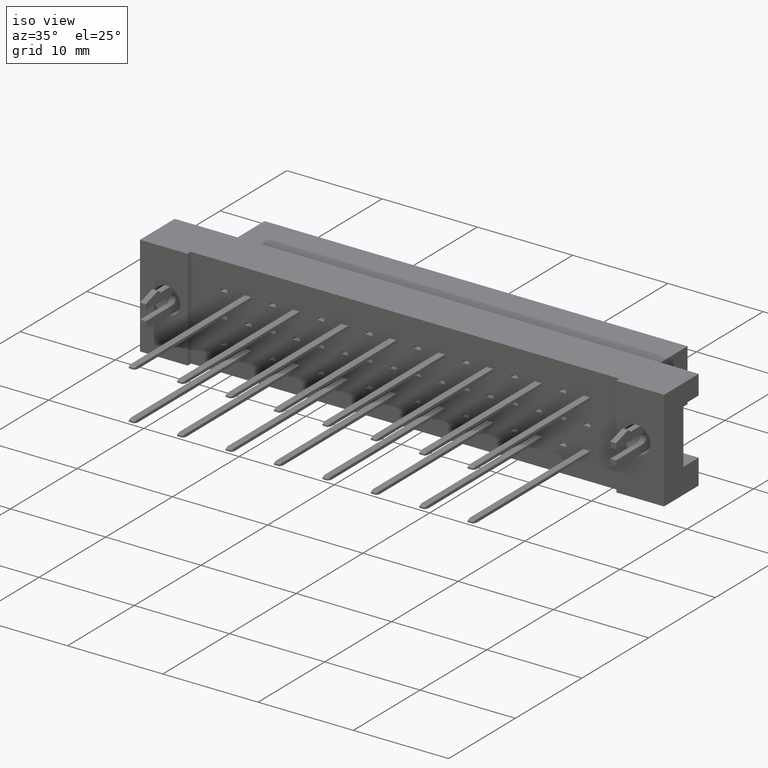
[diagram: clean part render]
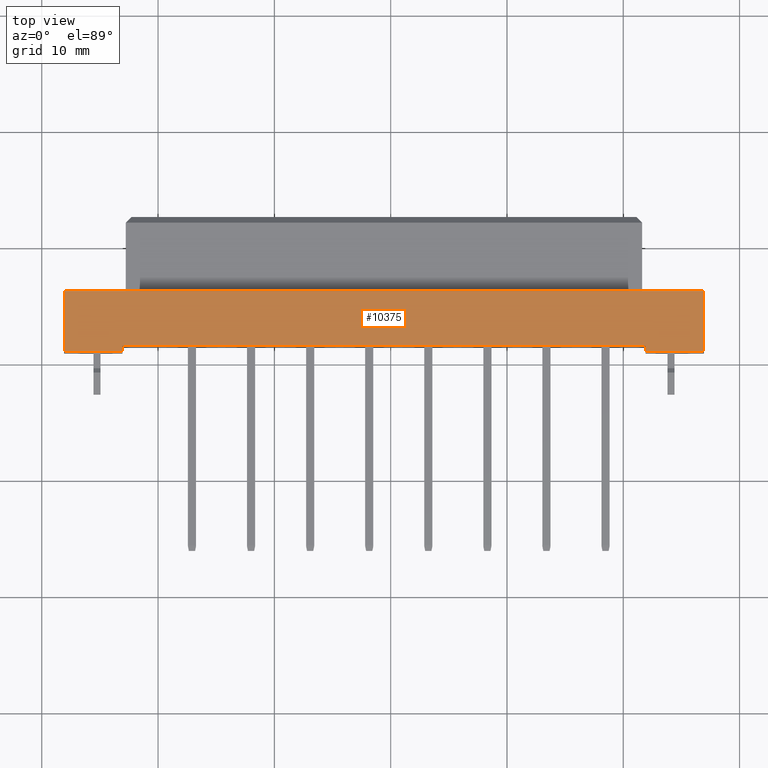
[diagram: tour spotlight — one face highlighted and labeled with its STEP entity id]
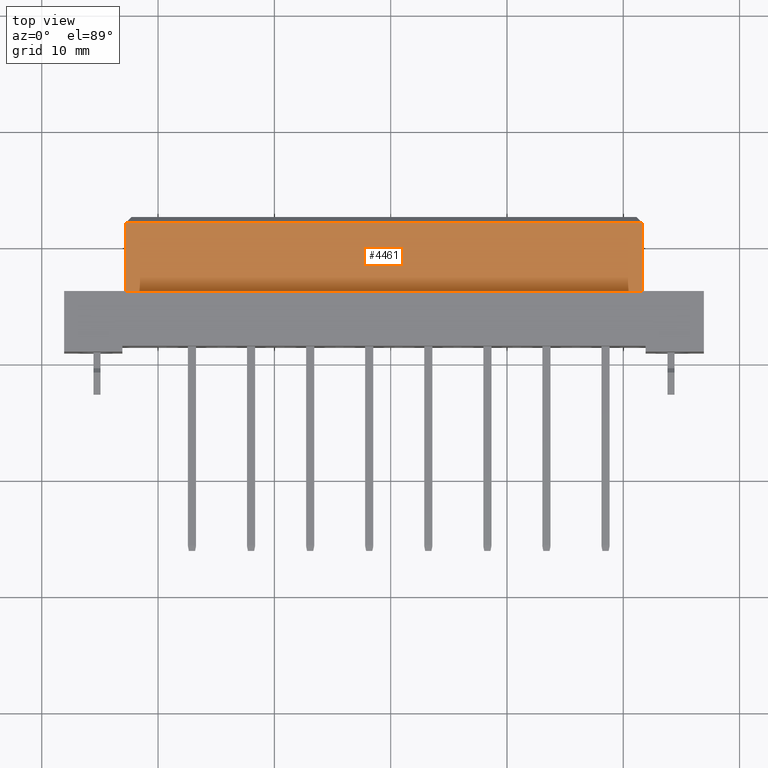
[diagram: tour spotlight — one face highlighted and labeled with its STEP entity id]
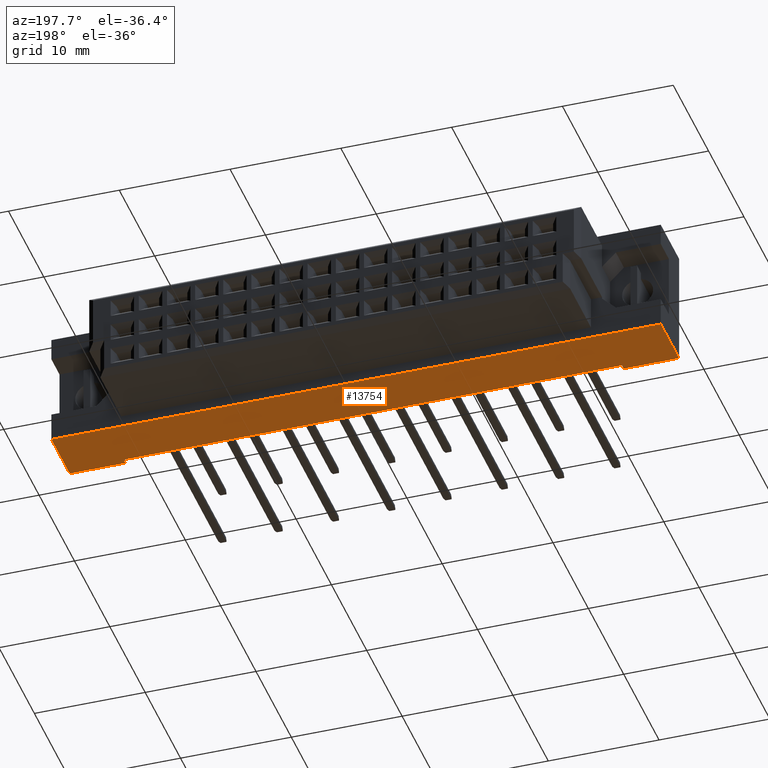
[diagram: tour spotlight — one face highlighted and labeled with its STEP entity id]
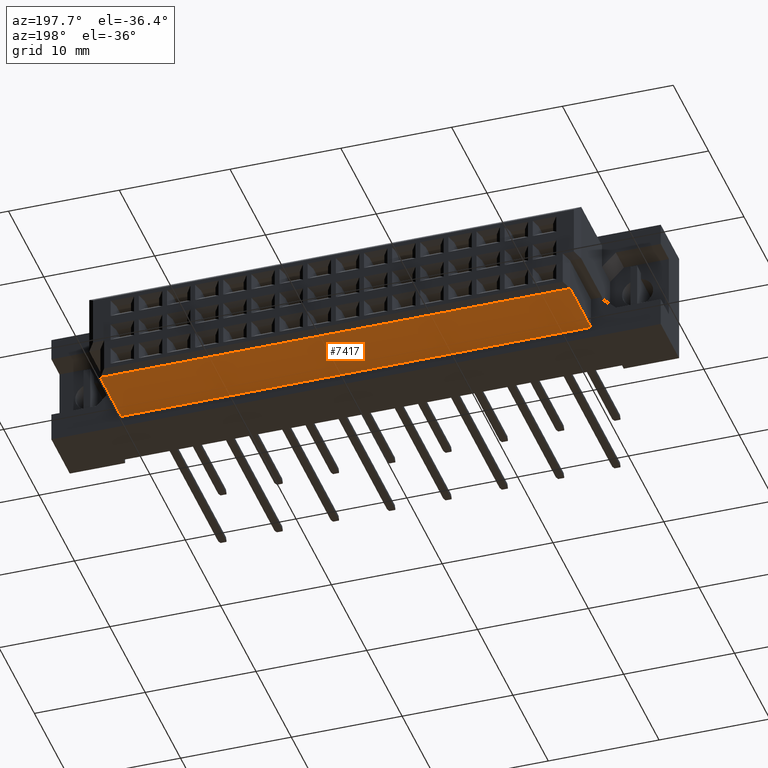
[diagram: tour spotlight — one face highlighted and labeled with its STEP entity id]
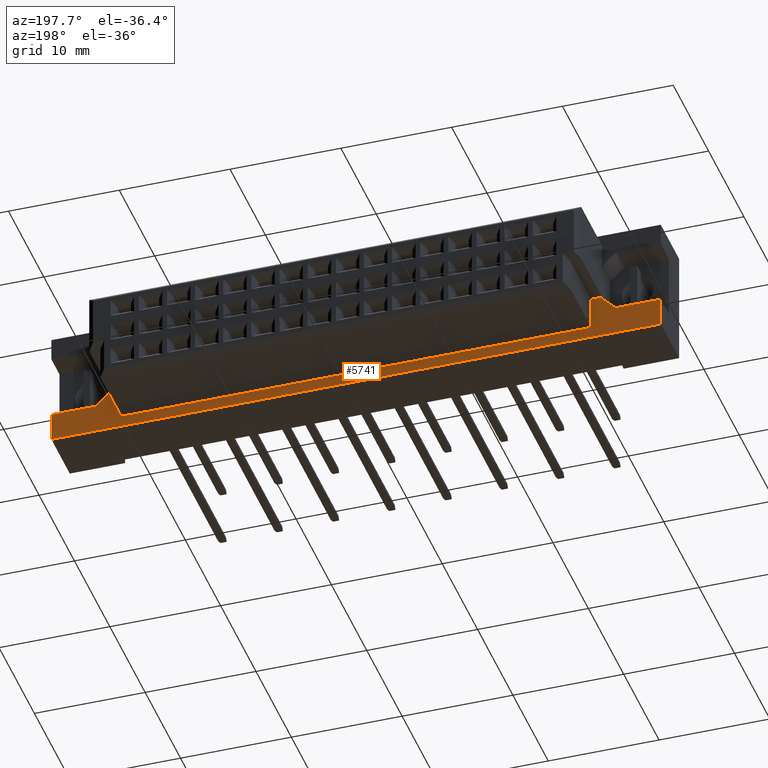
[diagram: tour spotlight — one face highlighted and labeled with its STEP entity id]
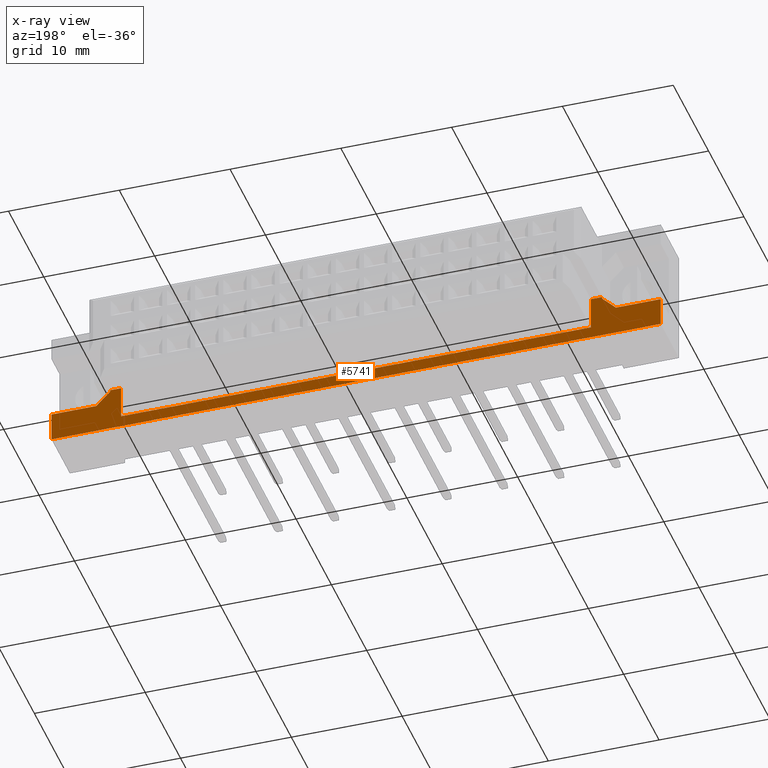
[diagram: x-ray of the same camera — body ghosted, this tour face saturated]
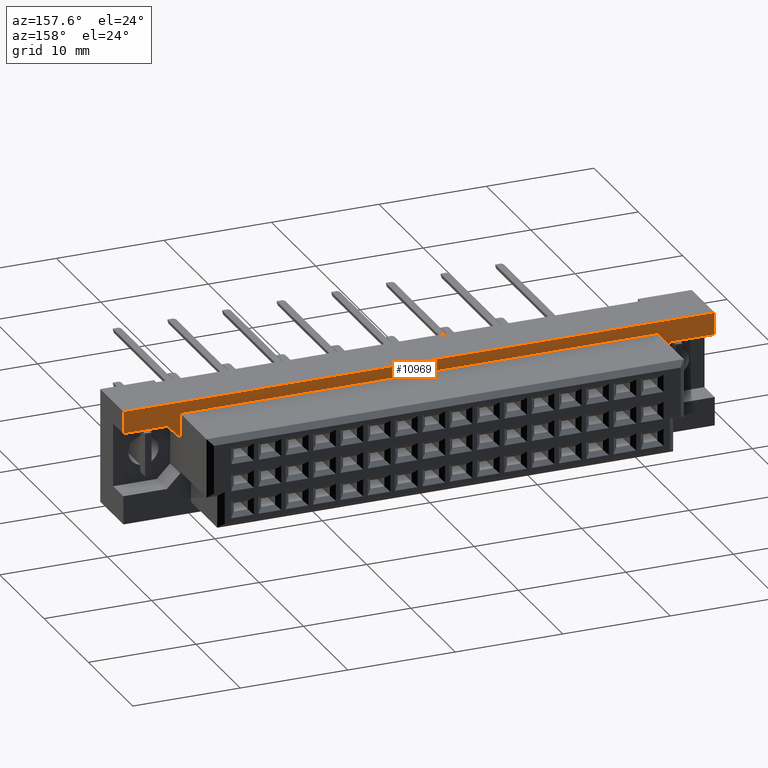
[diagram: tour spotlight — one face highlighted and labeled with its STEP entity id]
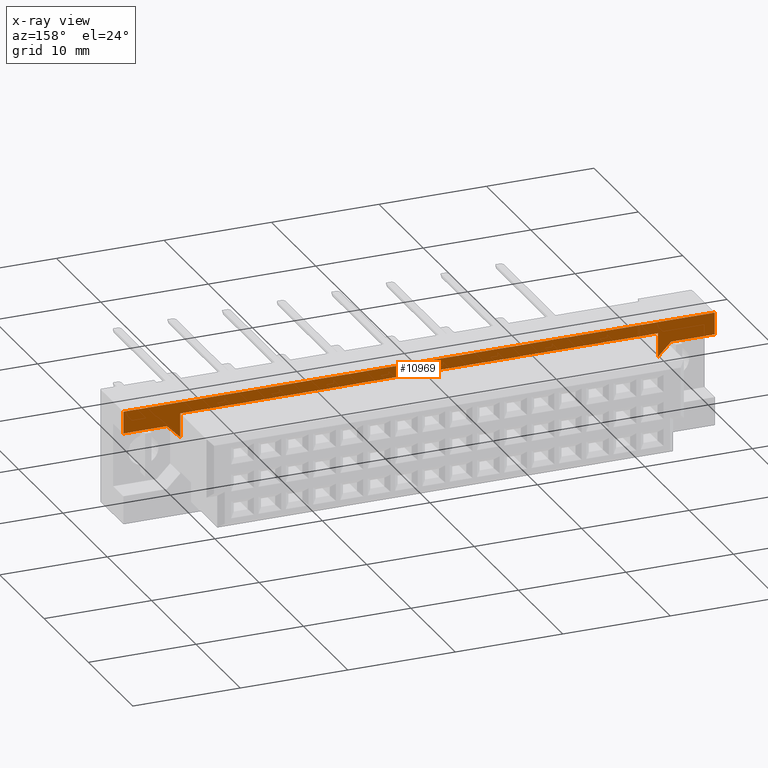
[diagram: x-ray of the same camera — body ghosted, this tour face saturated]
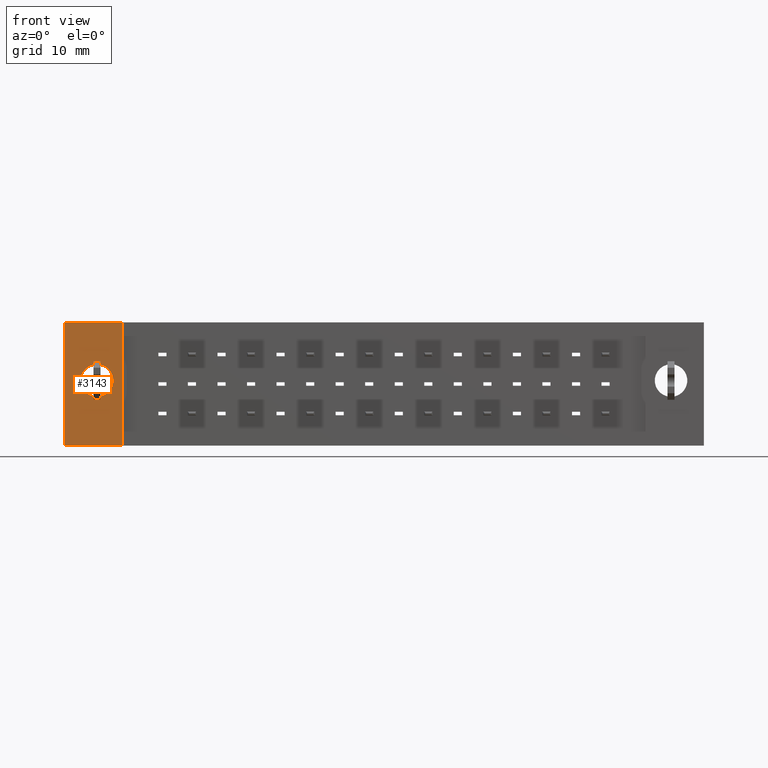
[diagram: tour spotlight — one face highlighted and labeled with its STEP entity id]
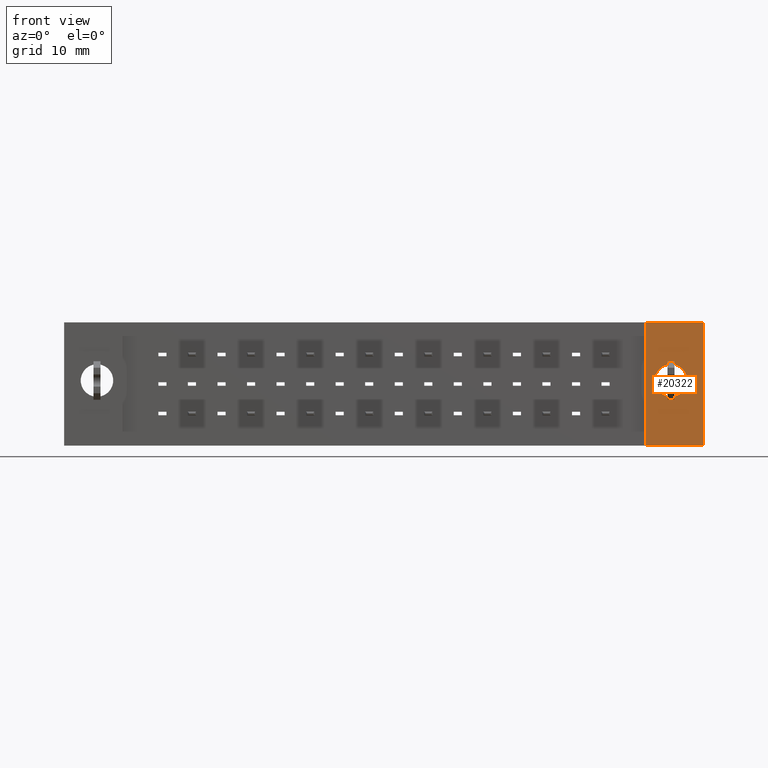
[diagram: tour spotlight — one face highlighted and labeled with its STEP entity id]
A machine part: a face-by-face anatomy tour. The part has 862 B-rep faces; the first image is the clean iso view, then the 8 largest visible faces are spotlighted one at a time (largest first), each with its STEP entity span.

Face 1 — top view, entity #10375. In plain terms, the highlighted planar face has unit normal (0, 0, 1).
Definition (entity closure, byte-faithful):
#76 = ORIENTED_EDGE ( 'NONE', *, *, #5737, .T. ) ;
#197 = DIRECTION ( 'NONE',  ( 1.000000000000000000, 0.0000000000000000000, 0.0000000000000000000 ) ) ;
#309 = LINE ( 'NONE', #6570, #13867 ) ;
#550 = AXIS2_PLACEMENT_3D ( 'NONE', #20572, #17804, #20679 ) ;
#1264 = PLANE ( 'NONE',  #550 ) ;
#1383 = LINE ( 'NONE', #4677, #20465 ) ;
#2002 = LINE ( 'NONE', #4971, #13163 ) ;
#2168 = VERTEX_POINT ( 'NONE', #10176 ) ;
#2181 = ORIENTED_EDGE ( 'NONE', *, *, #12169, .T. ) ;
#2316 = VERTEX_POINT ( 'NONE', #13773 ) ;
#2550 = CARTESIAN_POINT ( 'NONE',  ( -27.50000000000000355, -6.400000000000001243, 5.299999999999999822 ) ) ;
#2758 = EDGE_CURVE ( 'NONE', #3598, #20580, #1383, .T. ) ;
#3102 = CARTESIAN_POINT ( 'NONE',  ( -27.50000000000000355, -11.59999999999999964, 5.299999999999999822 ) ) ;
#3303 = DIRECTION ( 'NONE',  ( 1.000000000000000000, 0.0000000000000000000, 0.0000000000000000000 ) ) ;
#3465 = EDGE_CURVE ( 'NONE', #2168, #2316, #11430, .T. ) ;
#3598 = VERTEX_POINT ( 'NONE', #20959 ) ;
#4046 = VERTEX_POINT ( 'NONE', #19757 ) ;
#4211 = LINE ( 'NONE', #12177, #19230 ) ;
#4601 = VERTEX_POINT ( 'NONE', #14137 ) ;
#4677 = CARTESIAN_POINT ( 'NONE',  ( -22.50000000000001421, -11.09999999999999787, 5.300000000000009592 ) ) ;
#4971 = CARTESIAN_POINT ( 'NONE',  ( -27.50000000000000355, -11.59999999999999964, 5.299999999999999822 ) ) ;
#5359 = VECTOR ( 'NONE', #17776, 1000.000000000000000 ) ;
#5737 = EDGE_CURVE ( 'NONE', #2316, #4601, #309, .T. ) ;
#5755 = EDGE_CURVE ( 'NONE', #4046, #9879, #2002, .T. ) ;
#6287 = LINE ( 'NONE', #3102, #10558 ) ;
#6570 = CARTESIAN_POINT ( 'NONE',  ( -27.50000000000000355, -11.59999999999999964, 5.299999999999999822 ) ) ;
#6988 = DIRECTION ( 'NONE',  ( 0.0000000000000000000, 1.000000000000000000, 0.0000000000000000000 ) ) ;
#7110 = EDGE_LOOP ( 'NONE', ( #14470, #76, #2181, #17281, #16140, #15851, #10396, #10327 ) ) ;
#8736 = CARTESIAN_POINT ( 'NONE',  ( 27.49999999999999645, -6.400000000000001243, 5.299999999999999822 ) ) ;
#9163 = VECTOR ( 'NONE', #12697, 1000.000000000000000 ) ;
#9879 = VERTEX_POINT ( 'NONE', #13975 ) ;
#10176 = CARTESIAN_POINT ( 'NONE',  ( 22.50000000000001421, -11.09999999999999787, 5.300000000000009592 ) ) ;
#10327 = ORIENTED_EDGE ( 'NONE', *, *, #15572, .F. ) ;
#10375 = ADVANCED_FACE ( 'NONE', ( #12935 ), #1264, .T. ) ;
#10396 = ORIENTED_EDGE ( 'NONE', *, *, #2758, .F. ) ;
#10558 = VECTOR ( 'NONE', #3303, 1000.000000000000000 ) ;
#11175 = DIRECTION ( 'NONE',  ( -0.0000000000000000000, -1.000000000000000000, -6.123031769111886291E-17 ) ) ;
#11224 = LINE ( 'NONE', #14512, #5359 ) ;
#11430 = LINE ( 'NONE', #17778, #9163 ) ;
#12169 = EDGE_CURVE ( 'NONE', #4601, #13200, #4211, .T. ) ;
#12177 = CARTESIAN_POINT ( 'NONE',  ( 27.49999999999999645, -11.59999999999999964, 5.299999999999999822 ) ) ;
#12656 = CARTESIAN_POINT ( 'NONE',  ( -22.50000000000001421, -11.59999999999999964, 5.299999999999999822 ) ) ;
#12697 = DIRECTION ( 'NONE',  ( -0.0000000000000000000, -1.000000000000000000, -6.123031769111886291E-17 ) ) ;
#12935 = FACE_OUTER_BOUND ( 'NONE', #7110, .T. ) ;
#12951 = VECTOR ( 'NONE', #18982, 1000.000000000000000 ) ;
#13163 = VECTOR ( 'NONE', #6988, 1000.000000000000000 ) ;
#13200 = VERTEX_POINT ( 'NONE', #8736 ) ;
#13773 = CARTESIAN_POINT ( 'NONE',  ( 22.50000000000001421, -11.59999999999999964, 5.300000000000009592 ) ) ;
#13867 = VECTOR ( 'NONE', #197, 1000.000000000000000 ) ;
#13975 = CARTESIAN_POINT ( 'NONE',  ( -27.50000000000000355, -6.400000000000001243, 5.299999999999999822 ) ) ;
#14137 = CARTESIAN_POINT ( 'NONE',  ( 27.49999999999999645, -11.59999999999999964, 5.299999999999999822 ) ) ;
#14470 = ORIENTED_EDGE ( 'NONE', *, *, #3465, .T. ) ;
#14512 = CARTESIAN_POINT ( 'NONE',  ( -22.50000000000001421, -11.09999999999999787, 5.300000000000009592 ) ) ;
#15572 = EDGE_CURVE ( 'NONE', #2168, #3598, #11224, .T. ) ;
#15851 = ORIENTED_EDGE ( 'NONE', *, *, #20643, .T. ) ;
#16140 = ORIENTED_EDGE ( 'NONE', *, *, #5755, .F. ) ;
#17199 = LINE ( 'NONE', #2550, #12951 ) ;
#17281 = ORIENTED_EDGE ( 'NONE', *, *, #18234, .F. ) ;
#17776 = DIRECTION ( 'NONE',  ( -1.000000000000000000, -0.0000000000000000000, -0.0000000000000000000 ) ) ;
#17778 = CARTESIAN_POINT ( 'NONE',  ( 22.50000000000001421, -11.09999999999999787, 5.300000000000009592 ) ) ;
#17804 = DIRECTION ( 'NONE',  ( 0.0000000000000000000, 0.0000000000000000000, 1.000000000000000000 ) ) ;
#18234 = EDGE_CURVE ( 'NONE', #9879, #13200, #17199, .T. ) ;
#18621 = DIRECTION ( 'NONE',  ( 0.0000000000000000000, 1.000000000000000000, 0.0000000000000000000 ) ) ;
#18982 = DIRECTION ( 'NONE',  ( 1.000000000000000000, 0.0000000000000000000, 0.0000000000000000000 ) ) ;
#19230 = VECTOR ( 'NONE', #18621, 1000.000000000000000 ) ;
#19757 = CARTESIAN_POINT ( 'NONE',  ( -27.50000000000000355, -11.59999999999999964, 5.299999999999999822 ) ) ;
#20465 = VECTOR ( 'NONE', #11175, 1000.000000000000000 ) ;
#20572 = CARTESIAN_POINT ( 'NONE',  ( -27.50000000000000355, -11.59999999999999964, 5.299999999999999822 ) ) ;
#20580 = VERTEX_POINT ( 'NONE', #12656 ) ;
#20643 = EDGE_CURVE ( 'NONE', #4046, #20580, #6287, .T. ) ;
#20679 = DIRECTION ( 'NONE',  ( 1.000000000000000000, 0.0000000000000000000, -0.0000000000000000000 ) ) ;
#20959 = CARTESIAN_POINT ( 'NONE',  ( -22.50000000000001421, -11.09999999999999787, 5.300000000000009592 ) ) ;

Face 2 — top view, entity #4461. In plain terms, the highlighted planar face has unit normal (0, 0, 1).
Definition (entity closure, byte-faithful):
#119 = FACE_OUTER_BOUND ( 'NONE', #3746, .T. ) ;
#847 = DIRECTION ( 'NONE',  ( -0.0000000000000000000, 1.000000000000000000, -0.0000000000000000000 ) ) ;
#1556 = VERTEX_POINT ( 'NONE', #10643 ) ;
#1817 = DIRECTION ( 'NONE',  ( 1.000000000000000000, 0.0000000000000000000, -0.0000000000000000000 ) ) ;
#2199 = DIRECTION ( 'NONE',  ( -1.000000000000000000, 0.0000000000000000000, 0.0000000000000000000 ) ) ;
#2620 = CARTESIAN_POINT ( 'NONE',  ( -22.19999999999999218, -0.5000000000000143219, 4.250000000000000888 ) ) ;
#3746 = EDGE_LOOP ( 'NONE', ( #14559, #7997, #5891, #11866 ) ) ;
#4461 = ADVANCED_FACE ( 'NONE', ( #119 ), #13059, .T. ) ;
#4518 = DIRECTION ( 'NONE',  ( -0.0000000000000000000, 1.000000000000000000, -0.0000000000000000000 ) ) ;
#5891 = ORIENTED_EDGE ( 'NONE', *, *, #20258, .F. ) ;
#6857 = DIRECTION ( 'NONE',  ( 1.000000000000000000, -0.0000000000000000000, -0.0000000000000000000 ) ) ;
#7137 = VERTEX_POINT ( 'NONE', #19843 ) ;
#7337 = CARTESIAN_POINT ( 'NONE',  ( 22.19999999999999218, -6.400000000000001243, 4.250000000000000888 ) ) ;
#7997 = ORIENTED_EDGE ( 'NONE', *, *, #16517, .T. ) ;
#8454 = LINE ( 'NONE', #11328, #16632 ) ;
#9496 = EDGE_CURVE ( 'NONE', #14690, #7137, #8454, .T. ) ;
#10090 = EDGE_CURVE ( 'NONE', #7137, #1556, #15496, .T. ) ;
#10227 = AXIS2_PLACEMENT_3D ( 'NONE', #11487, #16349, #1817 ) ;
#10643 = CARTESIAN_POINT ( 'NONE',  ( 22.19999999999999218, -0.5000000000000143219, 4.250000000000000888 ) ) ;
#11328 = CARTESIAN_POINT ( 'NONE',  ( 22.19999999999999218, -6.400000000000001243, 4.250000000000000888 ) ) ;
#11487 = CARTESIAN_POINT ( 'NONE',  ( 22.19999999999999218, -6.400000000000001243, 4.250000000000000888 ) ) ;
#11561 = LINE ( 'NONE', #16739, #19582 ) ;
#11866 = ORIENTED_EDGE ( 'NONE', *, *, #9496, .T. ) ;
#13059 = PLANE ( 'NONE',  #10227 ) ;
#13368 = CARTESIAN_POINT ( 'NONE',  ( -22.19999999999999218, -6.400000000000001243, 4.250000000000000888 ) ) ;
#14559 = ORIENTED_EDGE ( 'NONE', *, *, #10090, .T. ) ;
#14690 = VERTEX_POINT ( 'NONE', #13368 ) ;
#15312 = VERTEX_POINT ( 'NONE', #2620 ) ;
#15496 = LINE ( 'NONE', #7337, #18157 ) ;
#16349 = DIRECTION ( 'NONE',  ( 0.0000000000000000000, 0.0000000000000000000, 1.000000000000000000 ) ) ;
#16517 = EDGE_CURVE ( 'NONE', #1556, #15312, #11561, .T. ) ;
#16632 = VECTOR ( 'NONE', #6857, 1000.000000000000000 ) ;
#16739 = CARTESIAN_POINT ( 'NONE',  ( -22.19999999999999218, -0.5000000000000143219, 4.250000000000000888 ) ) ;
#17057 = CARTESIAN_POINT ( 'NONE',  ( -22.19999999999999218, -6.400000000000001243, 4.250000000000000888 ) ) ;
#17460 = LINE ( 'NONE', #17057, #20035 ) ;
#18157 = VECTOR ( 'NONE', #847, 1000.000000000000000 ) ;
#19582 = VECTOR ( 'NONE', #2199, 1000.000000000000000 ) ;
#19843 = CARTESIAN_POINT ( 'NONE',  ( 22.19999999999999218, -6.400000000000001243, 4.250000000000000888 ) ) ;
#20035 = VECTOR ( 'NONE', #4518, 1000.000000000000000 ) ;
#20258 = EDGE_CURVE ( 'NONE', #14690, #15312, #17460, .T. ) ;

Face 3 — auxiliary view, entity #13754. In plain terms, the highlighted planar face has unit normal (0, 0, -1).
Definition (entity closure, byte-faithful):
#364 = VERTEX_POINT ( 'NONE', #14070 ) ;
#410 = LINE ( 'NONE', #6886, #12822 ) ;
#912 = DIRECTION ( 'NONE',  ( 0.0000000000000000000, 1.000000000000000000, 0.0000000000000000000 ) ) ;
#1062 = VECTOR ( 'NONE', #10121, 1000.000000000000000 ) ;
#1176 = EDGE_CURVE ( 'NONE', #7588, #3234, #10009, .T. ) ;
#1738 = LINE ( 'NONE', #16378, #13259 ) ;
#2289 = CARTESIAN_POINT ( 'NONE',  ( 22.50000000000001421, -11.09999999999999787, -5.300000000000000711 ) ) ;
#2774 = VERTEX_POINT ( 'NONE', #4780 ) ;
#3234 = VERTEX_POINT ( 'NONE', #11875 ) ;
#3243 = EDGE_CURVE ( 'NONE', #364, #3234, #16841, .T. ) ;
#4064 = EDGE_CURVE ( 'NONE', #7920, #15065, #11509, .T. ) ;
#4490 = ORIENTED_EDGE ( 'NONE', *, *, #5825, .T. ) ;
#4780 = CARTESIAN_POINT ( 'NONE',  ( -27.50000000000000355, -11.59999999999999964, -5.299999999999999822 ) ) ;
#5014 = DIRECTION ( 'NONE',  ( -0.0000000000000000000, -1.000000000000000000, -6.123031769111886291E-17 ) ) ;
#5493 = CARTESIAN_POINT ( 'NONE',  ( 27.49999999999999645, -11.59999999999999964, -5.299999999999999822 ) ) ;
#5496 = DIRECTION ( 'NONE',  ( -1.000000000000000000, -0.0000000000000000000, -0.0000000000000000000 ) ) ;
#5825 = EDGE_CURVE ( 'NONE', #15065, #2774, #410, .T. ) ;
#6008 = LINE ( 'NONE', #19140, #7699 ) ;
#6290 = ORIENTED_EDGE ( 'NONE', *, *, #1176, .F. ) ;
#6450 = VERTEX_POINT ( 'NONE', #8016 ) ;
#6563 = CARTESIAN_POINT ( 'NONE',  ( -22.50000000000001421, -11.59999999999999964, -5.300000000000000711 ) ) ;
#6603 = EDGE_CURVE ( 'NONE', #7920, #7588, #1738, .T. ) ;
#6622 = DIRECTION ( 'NONE',  ( 1.000000000000000000, -0.0000000000000000000, -0.0000000000000000000 ) ) ;
#6886 = CARTESIAN_POINT ( 'NONE',  ( -27.50000000000000355, -11.59999999999999964, -5.299999999999999822 ) ) ;
#7271 = CARTESIAN_POINT ( 'NONE',  ( -22.50000000000001421, -11.09999999999999787, -5.300000000000000711 ) ) ;
#7588 = VERTEX_POINT ( 'NONE', #2289 ) ;
#7699 = VECTOR ( 'NONE', #19037, 1000.000000000000000 ) ;
#7920 = VERTEX_POINT ( 'NONE', #7271 ) ;
#8016 = CARTESIAN_POINT ( 'NONE',  ( 27.49999999999999645, -6.400000000000001243, -5.299999999999999822 ) ) ;
#8030 = PLANE ( 'NONE',  #11798 ) ;
#8207 = CARTESIAN_POINT ( 'NONE',  ( -27.50000000000000355, -6.400000000000001243, -5.299999999999999822 ) ) ;
#8257 = VERTEX_POINT ( 'NONE', #8207 ) ;
#8636 = CARTESIAN_POINT ( 'NONE',  ( -22.50000000000001421, -11.09999999999999787, -5.300000000000000711 ) ) ;
#9716 = ORIENTED_EDGE ( 'NONE', *, *, #6603, .F. ) ;
#10009 = LINE ( 'NONE', #17952, #15588 ) ;
#10121 = DIRECTION ( 'NONE',  ( -0.0000000000000000000, -1.000000000000000000, -6.123031769111886291E-17 ) ) ;
#11145 = EDGE_CURVE ( 'NONE', #6450, #8257, #6008, .T. ) ;
#11190 = ORIENTED_EDGE ( 'NONE', *, *, #12684, .T. ) ;
#11464 = VECTOR ( 'NONE', #912, 1000.000000000000000 ) ;
#11465 = ORIENTED_EDGE ( 'NONE', *, *, #4064, .T. ) ;
#11509 = LINE ( 'NONE', #8636, #1062 ) ;
#11639 = DIRECTION ( 'NONE',  ( 0.0000000000000000000, 0.0000000000000000000, -1.000000000000000000 ) ) ;
#11798 = AXIS2_PLACEMENT_3D ( 'NONE', #12898, #11639, #19253 ) ;
#11875 = CARTESIAN_POINT ( 'NONE',  ( 22.50000000000001421, -11.59999999999999964, -5.300000000000000711 ) ) ;
#11883 = DIRECTION ( 'NONE',  ( -1.000000000000000000, -0.0000000000000000000, -0.0000000000000000000 ) ) ;
#11976 = LINE ( 'NONE', #5493, #11464 ) ;
#12684 = EDGE_CURVE ( 'NONE', #2774, #8257, #19557, .T. ) ;
#12822 = VECTOR ( 'NONE', #11883, 1000.000000000000000 ) ;
#12898 = CARTESIAN_POINT ( 'NONE',  ( -27.50000000000000355, -11.59999999999999964, -5.299999999999999822 ) ) ;
#13259 = VECTOR ( 'NONE', #6622, 1000.000000000000000 ) ;
#13455 = CARTESIAN_POINT ( 'NONE',  ( -27.50000000000000355, -11.59999999999999964, -5.299999999999999822 ) ) ;
#13754 = ADVANCED_FACE ( 'NONE', ( #16486 ), #8030, .T. ) ;
#14070 = CARTESIAN_POINT ( 'NONE',  ( 27.49999999999999645, -11.59999999999999964, -5.299999999999999822 ) ) ;
#15065 = VERTEX_POINT ( 'NONE', #6563 ) ;
#15335 = EDGE_CURVE ( 'NONE', #364, #6450, #11976, .T. ) ;
#15588 = VECTOR ( 'NONE', #5014, 1000.000000000000000 ) ;
#16378 = CARTESIAN_POINT ( 'NONE',  ( 22.50000000000001421, -11.09999999999999787, -5.300000000000000711 ) ) ;
#16486 = FACE_OUTER_BOUND ( 'NONE', #19978, .T. ) ;
#16841 = LINE ( 'NONE', #13455, #18604 ) ;
#16884 = VECTOR ( 'NONE', #17977, 1000.000000000000000 ) ;
#16998 = ORIENTED_EDGE ( 'NONE', *, *, #3243, .T. ) ;
#17771 = CARTESIAN_POINT ( 'NONE',  ( -27.50000000000000355, -11.59999999999999964, -5.299999999999999822 ) ) ;
#17952 = CARTESIAN_POINT ( 'NONE',  ( 22.50000000000001421, -11.09999999999999787, -5.300000000000000711 ) ) ;
#17977 = DIRECTION ( 'NONE',  ( 0.0000000000000000000, 1.000000000000000000, 0.0000000000000000000 ) ) ;
#18604 = VECTOR ( 'NONE', #5496, 1000.000000000000000 ) ;
#19037 = DIRECTION ( 'NONE',  ( -1.000000000000000000, 0.0000000000000000000, 0.0000000000000000000 ) ) ;
#19140 = CARTESIAN_POINT ( 'NONE',  ( 27.49999999999999645, -6.400000000000001243, -5.299999999999999822 ) ) ;
#19253 = DIRECTION ( 'NONE',  ( -1.000000000000000000, 0.0000000000000000000, -0.0000000000000000000 ) ) ;
#19557 = LINE ( 'NONE', #17771, #16884 ) ;
#19976 = ORIENTED_EDGE ( 'NONE', *, *, #11145, .F. ) ;
#19978 = EDGE_LOOP ( 'NONE', ( #6290, #9716, #11465, #4490, #11190, #19976, #20906, #16998 ) ) ;
#20906 = ORIENTED_EDGE ( 'NONE', *, *, #15335, .F. ) ;

Face 4 — auxiliary view, entity #7417. In plain terms, the highlighted planar face has unit normal (0, 0, -1).
Definition (entity closure, byte-faithful):
#55 = ORIENTED_EDGE ( 'NONE', *, *, #18289, .T. ) ;
#2393 = ORIENTED_EDGE ( 'NONE', *, *, #8080, .T. ) ;
#3921 = EDGE_CURVE ( 'NONE', #6217, #17637, #19336, .T. ) ;
#4802 = VECTOR ( 'NONE', #10488, 1000.000000000000000 ) ;
#4972 = DIRECTION ( 'NONE',  ( -0.0000000000000000000, 1.000000000000000000, -0.0000000000000000000 ) ) ;
#5163 = DIRECTION ( 'NONE',  ( -1.000000000000000000, 0.0000000000000000000, 0.0000000000000000000 ) ) ;
#5584 = CARTESIAN_POINT ( 'NONE',  ( -21.19999999999998863, -0.5000000000000143219, -4.250000000000000888 ) ) ;
#6217 = VERTEX_POINT ( 'NONE', #5584 ) ;
#6654 = VERTEX_POINT ( 'NONE', #17017 ) ;
#7123 = CARTESIAN_POINT ( 'NONE',  ( 21.20000000000000284, -6.400000000000000355, -4.250000000000000888 ) ) ;
#7417 = ADVANCED_FACE ( 'NONE', ( #11656 ), #13338, .T. ) ;
#7723 = LINE ( 'NONE', #9010, #4802 ) ;
#8080 = EDGE_CURVE ( 'NONE', #14810, #6654, #10875, .T. ) ;
#8360 = DIRECTION ( 'NONE',  ( -0.0000000000000000000, 0.0000000000000000000, -1.000000000000000000 ) ) ;
#9010 = CARTESIAN_POINT ( 'NONE',  ( 21.20000000000000284, -6.400000000000000355, -4.250000000000000888 ) ) ;
#9384 = CARTESIAN_POINT ( 'NONE',  ( 22.19999999999999218, -6.400000000000001243, -4.250000000000000888 ) ) ;
#9594 = DIRECTION ( 'NONE',  ( -1.000000000000000000, 0.0000000000000000000, 0.0000000000000000000 ) ) ;
#10488 = DIRECTION ( 'NONE',  ( -0.0000000000000000000, 1.000000000000000000, -0.0000000000000000000 ) ) ;
#10875 = LINE ( 'NONE', #9384, #16703 ) ;
#11656 = FACE_OUTER_BOUND ( 'NONE', #20888, .T. ) ;
#12462 = ORIENTED_EDGE ( 'NONE', *, *, #17370, .F. ) ;
#12939 = CARTESIAN_POINT ( 'NONE',  ( -21.19999999999998863, -6.400000000000000355, -4.250000000000000888 ) ) ;
#13338 = PLANE ( 'NONE',  #18361 ) ;
#14281 = CARTESIAN_POINT ( 'NONE',  ( 21.20000000000000284, -0.5000000000000143219, -4.250000000000000888 ) ) ;
#14810 = VERTEX_POINT ( 'NONE', #7123 ) ;
#15850 = DIRECTION ( 'NONE',  ( 1.000000000000000000, 0.0000000000000000000, 0.0000000000000000000 ) ) ;
#16329 = LINE ( 'NONE', #12939, #20363 ) ;
#16703 = VECTOR ( 'NONE', #9594, 1000.000000000000000 ) ;
#17017 = CARTESIAN_POINT ( 'NONE',  ( -21.19999999999998863, -6.400000000000000355, -4.250000000000000888 ) ) ;
#17159 = VECTOR ( 'NONE', #15850, 1000.000000000000000 ) ;
#17370 = EDGE_CURVE ( 'NONE', #14810, #17637, #7723, .T. ) ;
#17637 = VERTEX_POINT ( 'NONE', #18407 ) ;
#18289 = EDGE_CURVE ( 'NONE', #6654, #6217, #16329, .T. ) ;
#18361 = AXIS2_PLACEMENT_3D ( 'NONE', #19793, #8360, #5163 ) ;
#18407 = CARTESIAN_POINT ( 'NONE',  ( 21.20000000000000284, -0.5000000000000143219, -4.250000000000000888 ) ) ;
#19336 = LINE ( 'NONE', #14281, #17159 ) ;
#19793 = CARTESIAN_POINT ( 'NONE',  ( 22.19999999999999218, -6.400000000000001243, -4.250000000000000888 ) ) ;
#20297 = ORIENTED_EDGE ( 'NONE', *, *, #3921, .T. ) ;
#20363 = VECTOR ( 'NONE', #4972, 1000.000000000000000 ) ;
#20888 = EDGE_LOOP ( 'NONE', ( #55, #20297, #12462, #2393 ) ) ;

Face 5 — auxiliary view, entity #5741. An x-ray twin of the same camera follows (body ghosted, this face saturated) — the face is partly hidden behind the body. In plain terms, the highlighted planar face has unit normal (0, 1, 0).
Definition (entity closure, byte-faithful):
#18 = DIRECTION ( 'NONE',  ( -0.7071067811865479058, -0.0000000000000000000, -0.7071067811865472397 ) ) ;
#57 = EDGE_CURVE ( 'NONE', #3280, #6654, #16287, .T. ) ;
#150 = ORIENTED_EDGE ( 'NONE', *, *, #11145, .T. ) ;
#245 = CARTESIAN_POINT ( 'NONE',  ( -23.44999999999999218, -6.400000000000001243, -2.649999999999994582 ) ) ;
#429 = EDGE_CURVE ( 'NONE', #19173, #12432, #1907, .T. ) ;
#476 = DIRECTION ( 'NONE',  ( 1.000000000000000000, -0.0000000000000000000, -4.336808689942059151E-16 ) ) ;
#787 = CARTESIAN_POINT ( 'NONE',  ( -22.19999999999999218, -6.400000000000001243, -1.399999999999994138 ) ) ;
#802 = CARTESIAN_POINT ( 'NONE',  ( -22.19999999999999218, -6.400000000000001243, -1.399999999999994138 ) ) ;
#876 = ORIENTED_EDGE ( 'NONE', *, *, #2908, .F. ) ;
#920 = DIRECTION ( 'NONE',  ( 0.0000000000000000000, 0.0000000000000000000, -1.000000000000000000 ) ) ;
#1029 = CARTESIAN_POINT ( 'NONE',  ( 27.49999999999999645, -6.400000000000001243, 5.299999999999999822 ) ) ;
#1392 = ORIENTED_EDGE ( 'NONE', *, *, #3688, .T. ) ;
#1425 = ORIENTED_EDGE ( 'NONE', *, *, #429, .F. ) ;
#1471 = LINE ( 'NONE', #7863, #8031 ) ;
#1651 = DIRECTION ( 'NONE',  ( -1.000000000000000000, -0.0000000000000000000, -0.0000000000000000000 ) ) ;
#1674 = CARTESIAN_POINT ( 'NONE',  ( 21.19999999999999929, -6.400000000000000355, -1.249999999999995559 ) ) ;
#1712 = LINE ( 'NONE', #4794, #15308 ) ;
#1757 = EDGE_CURVE ( 'NONE', #8257, #3854, #16757, .T. ) ;
#1896 = CARTESIAN_POINT ( 'NONE',  ( 22.19999999999999218, -6.400000000000001243, -1.399999999999994138 ) ) ;
#1907 = LINE ( 'NONE', #8495, #9416 ) ;
#1967 = LINE ( 'NONE', #13324, #4314 ) ;
#2010 = ORIENTED_EDGE ( 'NONE', *, *, #8080, .F. ) ;
#2026 = EDGE_CURVE ( 'NONE', #15741, #17018, #14334, .T. ) ;
#2058 = LINE ( 'NONE', #10245, #6836 ) ;
#2411 = CARTESIAN_POINT ( 'NONE',  ( -21.19999999999999929, -6.400000000000000355, -1.249999999999995559 ) ) ;
#2716 = VERTEX_POINT ( 'NONE', #787 ) ;
#2908 = EDGE_CURVE ( 'NONE', #10472, #17018, #19945, .T. ) ;
#3280 = VERTEX_POINT ( 'NONE', #2411 ) ;
#3358 = LINE ( 'NONE', #12902, #16623 ) ;
#3587 = DIRECTION ( 'NONE',  ( 0.0000000000000000000, 0.0000000000000000000, 1.000000000000000000 ) ) ;
#3688 = EDGE_CURVE ( 'NONE', #15268, #3280, #1967, .T. ) ;
#3854 = VERTEX_POINT ( 'NONE', #17344 ) ;
#4008 = LINE ( 'NONE', #1029, #4289 ) ;
#4027 = VERTEX_POINT ( 'NONE', #245 ) ;
#4289 = VECTOR ( 'NONE', #920, 1000.000000000000000 ) ;
#4314 = VECTOR ( 'NONE', #476, 1000.000000000000000 ) ;
#4794 = CARTESIAN_POINT ( 'NONE',  ( -23.44999999999999218, -6.400000000000001243, -2.649999999999994582 ) ) ;
#5078 = VECTOR ( 'NONE', #20149, 1000.000000000000000 ) ;
#5342 = ORIENTED_EDGE ( 'NONE', *, *, #5614, .T. ) ;
#5408 = CARTESIAN_POINT ( 'NONE',  ( -27.50000000000000355, -6.400000000000001243, -5.299999999999999822 ) ) ;
#5614 = EDGE_CURVE ( 'NONE', #14810, #15741, #1471, .T. ) ;
#5741 = ADVANCED_FACE ( 'NONE', ( #16636 ), #9971, .T. ) ;
#6008 = LINE ( 'NONE', #19140, #7699 ) ;
#6450 = VERTEX_POINT ( 'NONE', #8016 ) ;
#6654 = VERTEX_POINT ( 'NONE', #17017 ) ;
#6836 = VECTOR ( 'NONE', #8545, 1000.000000000000000 ) ;
#6979 = CARTESIAN_POINT ( 'NONE',  ( -22.19999999999999218, -6.400000000000001243, -1.249999999999995559 ) ) ;
#7057 = EDGE_CURVE ( 'NONE', #2716, #4027, #1712, .T. ) ;
#7123 = CARTESIAN_POINT ( 'NONE',  ( 21.20000000000000284, -6.400000000000000355, -4.250000000000000888 ) ) ;
#7597 = EDGE_CURVE ( 'NONE', #15268, #2716, #17154, .T. ) ;
#7699 = VECTOR ( 'NONE', #19037, 1000.000000000000000 ) ;
#7795 = VECTOR ( 'NONE', #14538, 1000.000000000000000 ) ;
#7863 = CARTESIAN_POINT ( 'NONE',  ( 21.20000000000000284, -6.400000000000000355, -4.250000000000000888 ) ) ;
#8016 = CARTESIAN_POINT ( 'NONE',  ( 27.49999999999999645, -6.400000000000001243, -5.299999999999999822 ) ) ;
#8031 = VECTOR ( 'NONE', #11257, 1000.000000000000000 ) ;
#8080 = EDGE_CURVE ( 'NONE', #14810, #6654, #10875, .T. ) ;
#8207 = CARTESIAN_POINT ( 'NONE',  ( -27.50000000000000355, -6.400000000000001243, -5.299999999999999822 ) ) ;
#8257 = VERTEX_POINT ( 'NONE', #8207 ) ;
#8378 = DIRECTION ( 'NONE',  ( 0.0000000000000000000, 1.000000000000000000, -0.0000000000000000000 ) ) ;
#8495 = CARTESIAN_POINT ( 'NONE',  ( 27.50000000000000355, -6.400000000000001243, -2.649999999999994582 ) ) ;
#8545 = DIRECTION ( 'NONE',  ( -0.7071067811865479058, 0.0000000000000000000, 0.7071067811865472397 ) ) ;
#8886 = EDGE_LOOP ( 'NONE', ( #876, #12128, #1425, #14738, #150, #15499, #11164, #13845, #12451, #1392, #19541, #2010, #5342, #18778 ) ) ;
#9384 = CARTESIAN_POINT ( 'NONE',  ( 22.19999999999999218, -6.400000000000001243, -4.250000000000000888 ) ) ;
#9416 = VECTOR ( 'NONE', #19717, 1000.000000000000000 ) ;
#9523 = EDGE_CURVE ( 'NONE', #4027, #3854, #3358, .T. ) ;
#9594 = DIRECTION ( 'NONE',  ( -1.000000000000000000, 0.0000000000000000000, 0.0000000000000000000 ) ) ;
#9971 = PLANE ( 'NONE',  #15202 ) ;
#10245 = CARTESIAN_POINT ( 'NONE',  ( 23.44999999999999218, -6.400000000000001243, -2.649999999999994582 ) ) ;
#10329 = VECTOR ( 'NONE', #11789, 1000.000000000000000 ) ;
#10472 = VERTEX_POINT ( 'NONE', #1896 ) ;
#10642 = EDGE_CURVE ( 'NONE', #19173, #6450, #4008, .T. ) ;
#10875 = LINE ( 'NONE', #9384, #16703 ) ;
#11145 = EDGE_CURVE ( 'NONE', #6450, #8257, #6008, .T. ) ;
#11164 = ORIENTED_EDGE ( 'NONE', *, *, #9523, .F. ) ;
#11257 = DIRECTION ( 'NONE',  ( -1.156482317317869161E-15, 0.0000000000000000000, 1.000000000000000000 ) ) ;
#11314 = CARTESIAN_POINT ( 'NONE',  ( 23.44999999999999218, -6.400000000000001243, -2.649999999999994582 ) ) ;
#11529 = DIRECTION ( 'NONE',  ( 3.469446951953607484E-15, -0.0000000000000000000, -1.000000000000000000 ) ) ;
#11564 = CARTESIAN_POINT ( 'NONE',  ( 22.19999999999999218, -6.400000000000000355, -1.249999999999995115 ) ) ;
#11789 = DIRECTION ( 'NONE',  ( 0.0000000000000000000, 0.0000000000000000000, 1.000000000000000000 ) ) ;
#12128 = ORIENTED_EDGE ( 'NONE', *, *, #19371, .F. ) ;
#12432 = VERTEX_POINT ( 'NONE', #11314 ) ;
#12451 = ORIENTED_EDGE ( 'NONE', *, *, #7597, .F. ) ;
#12902 = CARTESIAN_POINT ( 'NONE',  ( -27.50000000000000355, -6.400000000000001243, -2.649999999999994582 ) ) ;
#13036 = CARTESIAN_POINT ( 'NONE',  ( -27.50000000000000355, -6.400000000000001243, -5.299999999999999822 ) ) ;
#13324 = CARTESIAN_POINT ( 'NONE',  ( -21.19999999999999929, -6.400000000000000355, -1.249999999999995559 ) ) ;
#13845 = ORIENTED_EDGE ( 'NONE', *, *, #7057, .F. ) ;
#14334 = LINE ( 'NONE', #1674, #7795 ) ;
#14538 = DIRECTION ( 'NONE',  ( 1.000000000000000000, 0.0000000000000000000, 2.168404344971029576E-16 ) ) ;
#14729 = CARTESIAN_POINT ( 'NONE',  ( 21.19999999999999929, -6.400000000000000355, -1.249999999999995559 ) ) ;
#14738 = ORIENTED_EDGE ( 'NONE', *, *, #10642, .T. ) ;
#14810 = VERTEX_POINT ( 'NONE', #7123 ) ;
#15006 = VECTOR ( 'NONE', #20218, 1000.000000000000000 ) ;
#15202 = AXIS2_PLACEMENT_3D ( 'NONE', #13036, #8378, #3587 ) ;
#15268 = VERTEX_POINT ( 'NONE', #6979 ) ;
#15308 = VECTOR ( 'NONE', #18, 1000.000000000000000 ) ;
#15499 = ORIENTED_EDGE ( 'NONE', *, *, #1757, .T. ) ;
#15741 = VERTEX_POINT ( 'NONE', #14729 ) ;
#16287 = LINE ( 'NONE', #16598, #18248 ) ;
#16598 = CARTESIAN_POINT ( 'NONE',  ( -21.19999999999998863, -6.400000000000000355, -4.250000000000000888 ) ) ;
#16623 = VECTOR ( 'NONE', #1651, 1000.000000000000000 ) ;
#16636 = FACE_OUTER_BOUND ( 'NONE', #8886, .T. ) ;
#16703 = VECTOR ( 'NONE', #9594, 1000.000000000000000 ) ;
#16757 = LINE ( 'NONE', #5408, #5078 ) ;
#17017 = CARTESIAN_POINT ( 'NONE',  ( -21.19999999999998863, -6.400000000000000355, -4.250000000000000888 ) ) ;
#17018 = VERTEX_POINT ( 'NONE', #11564 ) ;
#17154 = LINE ( 'NONE', #802, #15006 ) ;
#17344 = CARTESIAN_POINT ( 'NONE',  ( -27.50000000000000355, -6.400000000000001243, -2.649999999999994582 ) ) ;
#18248 = VECTOR ( 'NONE', #11529, 1000.000000000000000 ) ;
#18778 = ORIENTED_EDGE ( 'NONE', *, *, #2026, .T. ) ;
#19037 = DIRECTION ( 'NONE',  ( -1.000000000000000000, 0.0000000000000000000, 0.0000000000000000000 ) ) ;
#19140 = CARTESIAN_POINT ( 'NONE',  ( 27.49999999999999645, -6.400000000000001243, -5.299999999999999822 ) ) ;
#19173 = VERTEX_POINT ( 'NONE', #20831 ) ;
#19371 = EDGE_CURVE ( 'NONE', #12432, #10472, #2058, .T. ) ;
#19541 = ORIENTED_EDGE ( 'NONE', *, *, #57, .T. ) ;
#19717 = DIRECTION ( 'NONE',  ( -1.000000000000000000, 0.0000000000000000000, 0.0000000000000000000 ) ) ;
#19945 = LINE ( 'NONE', #20047, #10329 ) ;
#20047 = CARTESIAN_POINT ( 'NONE',  ( 22.19999999999999218, -6.400000000000001243, -1.399999999999994138 ) ) ;
#20149 = DIRECTION ( 'NONE',  ( 0.0000000000000000000, 0.0000000000000000000, 1.000000000000000000 ) ) ;
#20218 = DIRECTION ( 'NONE',  ( -0.0000000000000000000, -0.0000000000000000000, -1.000000000000000000 ) ) ;
#20831 = CARTESIAN_POINT ( 'NONE',  ( 27.50000000000000355, -6.400000000000001243, -2.649999999999994582 ) ) ;

Face 6 — auxiliary view, entity #10969. An x-ray twin of the same camera follows (body ghosted, this face saturated) — the face is partly hidden behind the body. In plain terms, the highlighted planar face has unit normal (0, 1, 0).
Definition (entity closure, byte-faithful):
#205 = VECTOR ( 'NONE', #2131, 1000.000000000000000 ) ;
#1263 = DIRECTION ( 'NONE',  ( 0.0000000000000000000, 0.0000000000000000000, -1.000000000000000000 ) ) ;
#1267 = ORIENTED_EDGE ( 'NONE', *, *, #17282, .F. ) ;
#1760 = VECTOR ( 'NONE', #20024, 1000.000000000000114 ) ;
#1782 = EDGE_CURVE ( 'NONE', #2926, #9879, #8706, .T. ) ;
#1935 = AXIS2_PLACEMENT_3D ( 'NONE', #13548, #20106, #3878 ) ;
#2124 = DIRECTION ( 'NONE',  ( 0.0000000000000000000, 0.0000000000000000000, 1.000000000000000000 ) ) ;
#2131 = DIRECTION ( 'NONE',  ( 0.0000000000000000000, 0.0000000000000000000, 1.000000000000000000 ) ) ;
#2202 = LINE ( 'NONE', #8690, #1760 ) ;
#2349 = ORIENTED_EDGE ( 'NONE', *, *, #9973, .F. ) ;
#2550 = CARTESIAN_POINT ( 'NONE',  ( -27.50000000000000355, -6.400000000000001243, 5.299999999999999822 ) ) ;
#2926 = VERTEX_POINT ( 'NONE', #5411 ) ;
#2968 = LINE ( 'NONE', #5953, #7442 ) ;
#3242 = CARTESIAN_POINT ( 'NONE',  ( 23.44999999999999218, -6.400000000000001243, 3.250000000000001332 ) ) ;
#3517 = DIRECTION ( 'NONE',  ( 0.0000000000000000000, 0.0000000000000000000, -1.000000000000000000 ) ) ;
#3544 = VECTOR ( 'NONE', #3517, 1000.000000000000000 ) ;
#3878 = DIRECTION ( 'NONE',  ( 0.0000000000000000000, 0.0000000000000000000, 1.000000000000000000 ) ) ;
#4049 = VERTEX_POINT ( 'NONE', #18267 ) ;
#4171 = LINE ( 'NONE', #15409, #20623 ) ;
#4205 = FACE_OUTER_BOUND ( 'NONE', #6760, .T. ) ;
#4268 = DIRECTION ( 'NONE',  ( 1.000000000000000000, 0.0000000000000000000, -1.070816960479507419E-16 ) ) ;
#4778 = VECTOR ( 'NONE', #7533, 1000.000000000000000 ) ;
#4912 = CARTESIAN_POINT ( 'NONE',  ( -22.19999999999999218, -6.400000000000001243, -4.250000000000000888 ) ) ;
#5331 = ORIENTED_EDGE ( 'NONE', *, *, #20772, .T. ) ;
#5411 = CARTESIAN_POINT ( 'NONE',  ( -27.50000000000000355, -6.400000000000001243, 3.250000000000001776 ) ) ;
#5568 = CARTESIAN_POINT ( 'NONE',  ( -22.19999999999999218, -6.400000000000001243, 2.000000000000000888 ) ) ;
#5953 = CARTESIAN_POINT ( 'NONE',  ( 22.19999999999999218, -6.400000000000001243, 4.250000000000000888 ) ) ;
#6523 = VERTEX_POINT ( 'NONE', #19443 ) ;
#6760 = EDGE_LOOP ( 'NONE', ( #8601, #20109, #16565, #14582, #2349, #1267, #20089, #13447, #16539, #5331 ) ) ;
#6857 = DIRECTION ( 'NONE',  ( 1.000000000000000000, -0.0000000000000000000, -0.0000000000000000000 ) ) ;
#7137 = VERTEX_POINT ( 'NONE', #19843 ) ;
#7442 = VECTOR ( 'NONE', #1263, 1000.000000000000000 ) ;
#7533 = DIRECTION ( 'NONE',  ( 1.000000000000000000, -0.0000000000000000000, 1.070816960479507419E-16 ) ) ;
#7810 = VECTOR ( 'NONE', #2124, 1000.000000000000000 ) ;
#8120 = VERTEX_POINT ( 'NONE', #14067 ) ;
#8454 = LINE ( 'NONE', #11328, #16632 ) ;
#8601 = ORIENTED_EDGE ( 'NONE', *, *, #18582, .F. ) ;
#8690 = CARTESIAN_POINT ( 'NONE',  ( -23.44999999999999218, -6.400000000000001243, 3.250000000000001332 ) ) ;
#8706 = LINE ( 'NONE', #16656, #7810 ) ;
#8736 = CARTESIAN_POINT ( 'NONE',  ( 27.49999999999999645, -6.400000000000001243, 5.299999999999999822 ) ) ;
#9496 = EDGE_CURVE ( 'NONE', #14690, #7137, #8454, .T. ) ;
#9726 = DIRECTION ( 'NONE',  ( 0.7071067811865474617, -0.0000000000000000000, 0.7071067811865474617 ) ) ;
#9879 = VERTEX_POINT ( 'NONE', #13975 ) ;
#9973 = EDGE_CURVE ( 'NONE', #12851, #14690, #13374, .T. ) ;
#10969 = ADVANCED_FACE ( 'NONE', ( #4205 ), #17147, .T. ) ;
#11327 = LINE ( 'NONE', #3242, #12153 ) ;
#11328 = CARTESIAN_POINT ( 'NONE',  ( 22.19999999999999218, -6.400000000000001243, 4.250000000000000888 ) ) ;
#11601 = LINE ( 'NONE', #19627, #3544 ) ;
#12153 = VECTOR ( 'NONE', #9726, 1000.000000000000114 ) ;
#12851 = VERTEX_POINT ( 'NONE', #5568 ) ;
#12951 = VECTOR ( 'NONE', #18982, 1000.000000000000000 ) ;
#13200 = VERTEX_POINT ( 'NONE', #8736 ) ;
#13368 = CARTESIAN_POINT ( 'NONE',  ( -22.19999999999999218, -6.400000000000001243, 4.250000000000000888 ) ) ;
#13374 = LINE ( 'NONE', #4912, #205 ) ;
#13447 = ORIENTED_EDGE ( 'NONE', *, *, #1782, .T. ) ;
#13548 = CARTESIAN_POINT ( 'NONE',  ( -27.50000000000000355, -6.400000000000001243, -5.299999999999999822 ) ) ;
#13975 = CARTESIAN_POINT ( 'NONE',  ( -27.50000000000000355, -6.400000000000001243, 5.299999999999999822 ) ) ;
#14067 = CARTESIAN_POINT ( 'NONE',  ( 27.50000000000000355, -6.400000000000001243, 3.250000000000001776 ) ) ;
#14454 = EDGE_CURVE ( 'NONE', #2926, #6523, #4171, .T. ) ;
#14582 = ORIENTED_EDGE ( 'NONE', *, *, #9496, .F. ) ;
#14690 = VERTEX_POINT ( 'NONE', #13368 ) ;
#15318 = VERTEX_POINT ( 'NONE', #17061 ) ;
#15409 = CARTESIAN_POINT ( 'NONE',  ( -27.50000000000000355, -6.400000000000001243, 3.250000000000001776 ) ) ;
#15471 = CARTESIAN_POINT ( 'NONE',  ( 27.50000000000000355, -6.400000000000001243, 3.250000000000001776 ) ) ;
#15581 = EDGE_CURVE ( 'NONE', #4049, #15318, #11327, .T. ) ;
#16539 = ORIENTED_EDGE ( 'NONE', *, *, #18234, .T. ) ;
#16565 = ORIENTED_EDGE ( 'NONE', *, *, #16871, .F. ) ;
#16632 = VECTOR ( 'NONE', #6857, 1000.000000000000000 ) ;
#16656 = CARTESIAN_POINT ( 'NONE',  ( -27.50000000000000355, -6.400000000000001243, -5.299999999999999822 ) ) ;
#16871 = EDGE_CURVE ( 'NONE', #7137, #4049, #2968, .T. ) ;
#17061 = CARTESIAN_POINT ( 'NONE',  ( 23.44999999999999218, -6.400000000000001243, 3.250000000000001332 ) ) ;
#17147 = PLANE ( 'NONE',  #1935 ) ;
#17199 = LINE ( 'NONE', #2550, #12951 ) ;
#17282 = EDGE_CURVE ( 'NONE', #6523, #12851, #2202, .T. ) ;
#18234 = EDGE_CURVE ( 'NONE', #9879, #13200, #17199, .T. ) ;
#18267 = CARTESIAN_POINT ( 'NONE',  ( 22.19999999999999218, -6.400000000000001243, 2.000000000000000000 ) ) ;
#18582 = EDGE_CURVE ( 'NONE', #15318, #8120, #18960, .T. ) ;
#18960 = LINE ( 'NONE', #15471, #4778 ) ;
#18982 = DIRECTION ( 'NONE',  ( 1.000000000000000000, 0.0000000000000000000, 0.0000000000000000000 ) ) ;
#19443 = CARTESIAN_POINT ( 'NONE',  ( -23.44999999999999218, -6.400000000000001243, 3.250000000000001332 ) ) ;
#19627 = CARTESIAN_POINT ( 'NONE',  ( 27.49999999999999645, -6.400000000000001243, 5.299999999999999822 ) ) ;
#19843 = CARTESIAN_POINT ( 'NONE',  ( 22.19999999999999218, -6.400000000000001243, 4.250000000000000888 ) ) ;
#20024 = DIRECTION ( 'NONE',  ( 0.7071067811865474617, 0.0000000000000000000, -0.7071067811865474617 ) ) ;
#20089 = ORIENTED_EDGE ( 'NONE', *, *, #14454, .F. ) ;
#20106 = DIRECTION ( 'NONE',  ( 0.0000000000000000000, 1.000000000000000000, -0.0000000000000000000 ) ) ;
#20109 = ORIENTED_EDGE ( 'NONE', *, *, #15581, .F. ) ;
#20623 = VECTOR ( 'NONE', #4268, 1000.000000000000000 ) ;
#20772 = EDGE_CURVE ( 'NONE', #13200, #8120, #11601, .T. ) ;

Face 7 — front view, entity #3143. In plain terms, the highlighted planar face has unit normal (0, -1, 0).
Definition (entity closure, byte-faithful):
#410 = LINE ( 'NONE', #6886, #12822 ) ;
#516 = VERTEX_POINT ( 'NONE', #8386 ) ;
#654 = AXIS2_PLACEMENT_3D ( 'NONE', #2760, #9247, #1160 ) ;
#1160 = DIRECTION ( 'NONE',  ( 0.0000000000000000000, -0.0000000000000000000, -1.000000000000000000 ) ) ;
#1215 = ORIENTED_EDGE ( 'NONE', *, *, #20643, .F. ) ;
#2760 = CARTESIAN_POINT ( 'NONE',  ( 27.49999999999999645, -11.59999999999999964, -5.299999999999999822 ) ) ;
#2774 = VERTEX_POINT ( 'NONE', #4780 ) ;
#2860 = CARTESIAN_POINT ( 'NONE',  ( -27.50000000000000355, -11.59999999999999964, 5.299999999999999822 ) ) ;
#3102 = CARTESIAN_POINT ( 'NONE',  ( -27.50000000000000355, -11.59999999999999964, 5.299999999999999822 ) ) ;
#3143 = ADVANCED_FACE ( 'NONE', ( #18870, #20676 ), #7858, .T. ) ;
#3303 = DIRECTION ( 'NONE',  ( 1.000000000000000000, 0.0000000000000000000, 0.0000000000000000000 ) ) ;
#3832 = ORIENTED_EDGE ( 'NONE', *, *, #6724, .T. ) ;
#3953 = DIRECTION ( 'NONE',  ( 0.0000000000000000000, 0.0000000000000000000, 1.000000000000000000 ) ) ;
#4046 = VERTEX_POINT ( 'NONE', #19757 ) ;
#4780 = CARTESIAN_POINT ( 'NONE',  ( -27.50000000000000355, -11.59999999999999964, -5.299999999999999822 ) ) ;
#5479 = AXIS2_PLACEMENT_3D ( 'NONE', #8749, #10654, #15317 ) ;
#5825 = EDGE_CURVE ( 'NONE', #15065, #2774, #410, .T. ) ;
#6287 = LINE ( 'NONE', #3102, #10558 ) ;
#6563 = CARTESIAN_POINT ( 'NONE',  ( -22.50000000000001421, -11.59999999999999964, -5.300000000000000711 ) ) ;
#6712 = AXIS2_PLACEMENT_3D ( 'NONE', #18475, #16490, #3953 ) ;
#6724 = EDGE_CURVE ( 'NONE', #14445, #516, #14648, .T. ) ;
#6886 = CARTESIAN_POINT ( 'NONE',  ( -27.50000000000000355, -11.59999999999999964, -5.299999999999999822 ) ) ;
#7004 = ORIENTED_EDGE ( 'NONE', *, *, #15710, .T. ) ;
#7319 = EDGE_LOOP ( 'NONE', ( #3832, #7004 ) ) ;
#7483 = ORIENTED_EDGE ( 'NONE', *, *, #9059, .F. ) ;
#7858 = PLANE ( 'NONE',  #654 ) ;
#8028 = EDGE_CURVE ( 'NONE', #20580, #15065, #19123, .T. ) ;
#8386 = CARTESIAN_POINT ( 'NONE',  ( -24.67999999999999972, -11.59999999999999964, -1.099999999999992761 ) ) ;
#8749 = CARTESIAN_POINT ( 'NONE',  ( -24.67999999999999972, -11.59999999999999964, 0.3000000000000029310 ) ) ;
#9059 = EDGE_CURVE ( 'NONE', #2774, #4046, #17706, .T. ) ;
#9247 = DIRECTION ( 'NONE',  ( 0.0000000000000000000, -1.000000000000000000, 0.0000000000000000000 ) ) ;
#9649 = DIRECTION ( 'NONE',  ( -0.0000000000000000000, -0.0000000000000000000, 1.000000000000000000 ) ) ;
#10558 = VECTOR ( 'NONE', #3303, 1000.000000000000000 ) ;
#10654 = DIRECTION ( 'NONE',  ( 0.0000000000000000000, 1.000000000000000000, 6.123031769111886291E-17 ) ) ;
#11883 = DIRECTION ( 'NONE',  ( -1.000000000000000000, -0.0000000000000000000, -0.0000000000000000000 ) ) ;
#12236 = CARTESIAN_POINT ( 'NONE',  ( -24.67999999999999972, -11.59999999999999964, 1.699999999999998623 ) ) ;
#12311 = VECTOR ( 'NONE', #12565, 1000.000000000000000 ) ;
#12565 = DIRECTION ( 'NONE',  ( -0.0000000000000000000, -0.0000000000000000000, -1.000000000000000000 ) ) ;
#12656 = CARTESIAN_POINT ( 'NONE',  ( -22.50000000000001421, -11.59999999999999964, 5.299999999999999822 ) ) ;
#12822 = VECTOR ( 'NONE', #11883, 1000.000000000000000 ) ;
#14445 = VERTEX_POINT ( 'NONE', #12236 ) ;
#14648 = CIRCLE ( 'NONE', #5479, 1.399999999999995692 ) ;
#15065 = VERTEX_POINT ( 'NONE', #6563 ) ;
#15317 = DIRECTION ( 'NONE',  ( 0.0000000000000000000, 0.0000000000000000000, 1.000000000000000000 ) ) ;
#15710 = EDGE_CURVE ( 'NONE', #516, #14445, #15858, .T. ) ;
#15762 = EDGE_LOOP ( 'NONE', ( #17286, #1215, #7483, #19275 ) ) ;
#15858 = CIRCLE ( 'NONE', #6712, 1.399999999999995692 ) ;
#16490 = DIRECTION ( 'NONE',  ( 0.0000000000000000000, 1.000000000000000000, 6.123031769111886291E-17 ) ) ;
#17286 = ORIENTED_EDGE ( 'NONE', *, *, #8028, .F. ) ;
#17533 = CARTESIAN_POINT ( 'NONE',  ( -22.50000000000001421, -11.59999999999999964, -5.300000000000000711 ) ) ;
#17706 = LINE ( 'NONE', #2860, #19365 ) ;
#18475 = CARTESIAN_POINT ( 'NONE',  ( -24.67999999999999972, -11.59999999999999964, 0.3000000000000029310 ) ) ;
#18870 = FACE_OUTER_BOUND ( 'NONE', #15762, .T. ) ;
#19123 = LINE ( 'NONE', #17533, #12311 ) ;
#19275 = ORIENTED_EDGE ( 'NONE', *, *, #5825, .F. ) ;
#19365 = VECTOR ( 'NONE', #9649, 1000.000000000000000 ) ;
#19757 = CARTESIAN_POINT ( 'NONE',  ( -27.50000000000000355, -11.59999999999999964, 5.299999999999999822 ) ) ;
#20580 = VERTEX_POINT ( 'NONE', #12656 ) ;
#20643 = EDGE_CURVE ( 'NONE', #4046, #20580, #6287, .T. ) ;
#20676 = FACE_BOUND ( 'NONE', #7319, .T. ) ;

Face 8 — front view, entity #20322. In plain terms, the highlighted planar face has unit normal (0, -1, 0).
Definition (entity closure, byte-faithful):
#197 = DIRECTION ( 'NONE',  ( 1.000000000000000000, 0.0000000000000000000, 0.0000000000000000000 ) ) ;
#309 = LINE ( 'NONE', #6570, #13867 ) ;
#364 = VERTEX_POINT ( 'NONE', #14070 ) ;
#478 = VERTEX_POINT ( 'NONE', #11779 ) ;
#943 = CIRCLE ( 'NONE', #12470, 1.399999999999995692 ) ;
#1523 = ORIENTED_EDGE ( 'NONE', *, *, #20617, .F. ) ;
#2006 = CIRCLE ( 'NONE', #20298, 1.399999999999995692 ) ;
#2225 = CARTESIAN_POINT ( 'NONE',  ( 27.49999999999999645, -11.59999999999999964, 5.299999999999999822 ) ) ;
#2316 = VERTEX_POINT ( 'NONE', #13773 ) ;
#3234 = VERTEX_POINT ( 'NONE', #11875 ) ;
#3243 = EDGE_CURVE ( 'NONE', #364, #3234, #16841, .T. ) ;
#3533 = EDGE_LOOP ( 'NONE', ( #1523, #13802, #8846, #18965 ) ) ;
#4583 = LINE ( 'NONE', #7891, #5116 ) ;
#4601 = VERTEX_POINT ( 'NONE', #14137 ) ;
#5116 = VECTOR ( 'NONE', #20806, 1000.000000000000000 ) ;
#5496 = DIRECTION ( 'NONE',  ( -1.000000000000000000, -0.0000000000000000000, -0.0000000000000000000 ) ) ;
#5737 = EDGE_CURVE ( 'NONE', #2316, #4601, #309, .T. ) ;
#5920 = DIRECTION ( 'NONE',  ( 0.0000000000000000000, -1.000000000000000000, 0.0000000000000000000 ) ) ;
#6049 = DIRECTION ( 'NONE',  ( 0.0000000000000000000, 0.0000000000000000000, -1.000000000000000000 ) ) ;
#6570 = CARTESIAN_POINT ( 'NONE',  ( -27.50000000000000355, -11.59999999999999964, 5.299999999999999822 ) ) ;
#7891 = CARTESIAN_POINT ( 'NONE',  ( 22.50000000000001421, -11.59999999999999964, 5.300000000000009592 ) ) ;
#8710 = DIRECTION ( 'NONE',  ( 0.0000000000000000000, 0.0000000000000000000, -1.000000000000000000 ) ) ;
#8846 = ORIENTED_EDGE ( 'NONE', *, *, #8879, .F. ) ;
#8879 = EDGE_CURVE ( 'NONE', #4601, #364, #10406, .T. ) ;
#9410 = FACE_BOUND ( 'NONE', #10572, .T. ) ;
#10406 = LINE ( 'NONE', #2225, #15981 ) ;
#10572 = EDGE_LOOP ( 'NONE', ( #15784, #12271 ) ) ;
#11109 = DIRECTION ( 'NONE',  ( 0.0000000000000000000, 0.0000000000000000000, -1.000000000000000000 ) ) ;
#11779 = CARTESIAN_POINT ( 'NONE',  ( 24.67999999999999972, -11.59999999999999964, 1.699999999999998623 ) ) ;
#11875 = CARTESIAN_POINT ( 'NONE',  ( 22.50000000000001421, -11.59999999999999964, -5.300000000000000711 ) ) ;
#12271 = ORIENTED_EDGE ( 'NONE', *, *, #12385, .T. ) ;
#12385 = EDGE_CURVE ( 'NONE', #15755, #478, #943, .T. ) ;
#12419 = CARTESIAN_POINT ( 'NONE',  ( 24.67999999999999972, -11.59999999999999964, 0.3000000000000029310 ) ) ;
#12470 = AXIS2_PLACEMENT_3D ( 'NONE', #19042, #14296, #11109 ) ;
#12924 = AXIS2_PLACEMENT_3D ( 'NONE', #18945, #5920, #18833 ) ;
#13455 = CARTESIAN_POINT ( 'NONE',  ( -27.50000000000000355, -11.59999999999999964, -5.299999999999999822 ) ) ;
#13773 = CARTESIAN_POINT ( 'NONE',  ( 22.50000000000001421, -11.59999999999999964, 5.300000000000009592 ) ) ;
#13802 = ORIENTED_EDGE ( 'NONE', *, *, #3243, .F. ) ;
#13867 = VECTOR ( 'NONE', #197, 1000.000000000000000 ) ;
#13995 = FACE_OUTER_BOUND ( 'NONE', #3533, .T. ) ;
#14070 = CARTESIAN_POINT ( 'NONE',  ( 27.49999999999999645, -11.59999999999999964, -5.299999999999999822 ) ) ;
#14137 = CARTESIAN_POINT ( 'NONE',  ( 27.49999999999999645, -11.59999999999999964, 5.299999999999999822 ) ) ;
#14296 = DIRECTION ( 'NONE',  ( 0.0000000000000000000, 1.000000000000000000, 6.123031769111886291E-17 ) ) ;
#14967 = EDGE_CURVE ( 'NONE', #478, #15755, #2006, .T. ) ;
#15515 = CARTESIAN_POINT ( 'NONE',  ( 24.67999999999999972, -11.59999999999999964, -1.099999999999992761 ) ) ;
#15755 = VERTEX_POINT ( 'NONE', #15515 ) ;
#15784 = ORIENTED_EDGE ( 'NONE', *, *, #14967, .T. ) ;
#15981 = VECTOR ( 'NONE', #8710, 1000.000000000000000 ) ;
#16841 = LINE ( 'NONE', #13455, #18604 ) ;
#18604 = VECTOR ( 'NONE', #5496, 1000.000000000000000 ) ;
#18833 = DIRECTION ( 'NONE',  ( 0.0000000000000000000, -0.0000000000000000000, -1.000000000000000000 ) ) ;
#18867 = DIRECTION ( 'NONE',  ( 0.0000000000000000000, 1.000000000000000000, 6.123031769111886291E-17 ) ) ;
#18945 = CARTESIAN_POINT ( 'NONE',  ( 27.49999999999999645, -11.59999999999999964, -5.299999999999999822 ) ) ;
#18965 = ORIENTED_EDGE ( 'NONE', *, *, #5737, .F. ) ;
#19042 = CARTESIAN_POINT ( 'NONE',  ( 24.67999999999999972, -11.59999999999999964, 0.3000000000000029310 ) ) ;
#20298 = AXIS2_PLACEMENT_3D ( 'NONE', #12419, #18867, #6049 ) ;
#20322 = ADVANCED_FACE ( 'NONE', ( #13995, #9410 ), #20434, .T. ) ;
#20434 = PLANE ( 'NONE',  #12924 ) ;
#20617 = EDGE_CURVE ( 'NONE', #3234, #2316, #4583, .T. ) ;
#20806 = DIRECTION ( 'NONE',  ( -0.0000000000000000000, -0.0000000000000000000, 1.000000000000000000 ) ) ;